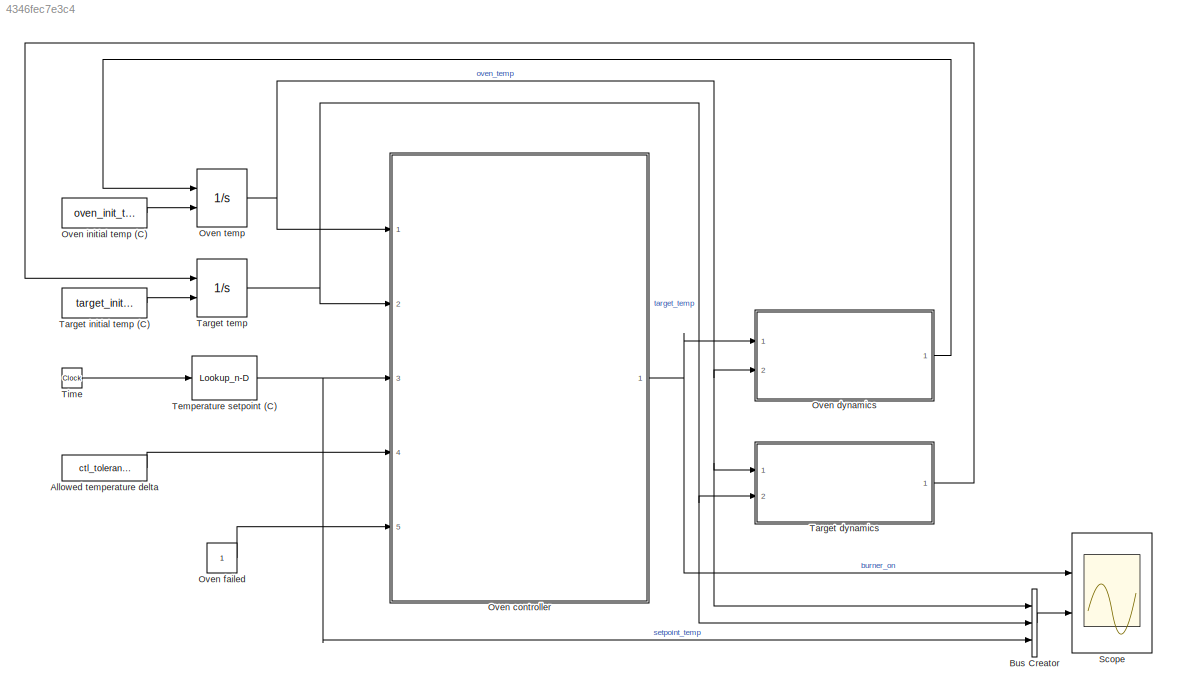
MODEL slx_4346fec7e3c4
KIND model
CONFIG InitFcn = %% useful unit conversions\nCtoK = 273.15;		% converts a temperature in celsius to kelvin\n\n%% air data from http://www.engineeringtoolbox.com/air-properties-d_156.html\nair_data = [\n-150	2.793	1.026	0.0116	3.08	8.21	0.76\n-100	1.980	1.009	0.0160	5.95	5.82	0.74\n-50	1.534	1.005	0.0204	9.55	4.51	0.725\n0	1.293	1.005	0.0243	13.30	3.67	0.715\n20	1.205	1.005	0.0257	15.11	3.43	0.713\n40	1.127	1.005	0.0271	16.9...<+1456ch>
BLOCK [Constant] Allowed temperature delta
  Value = ctl_tolerance
BLOCK [BusCreator] Bus Creator
  DisplayOption = bar
  Inputs = 3
  Ports = [3, 1]
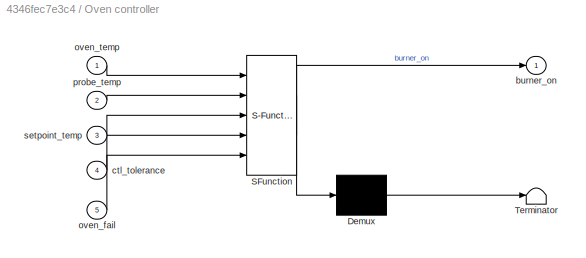
BLOCK [SubSystem] Oven controller
  ErrorFcn = Stateflow.Translate.translate
  FunctionWithSeparateData = off
  MaskHideContents = off
  MinAlgLoopOccurrences = off
  Opaque = off
  PermitHierarchicalResolution = ExplicitOnly
  Ports = [5, 1]
  PropExecContextOutsideSubsystem = off
  RTWSystemCode = Auto
  RequestExecContextInheritance = off
  SFBlockType = Chart
  TreatAsAtomicUnit = on
BLOCK [Demux] Oven controller/ Demux 
  Outputs = 1
  Ports = [1, 1]
BLOCK [S-Function] Oven controller/ SFunction 
  EnableBusSupport = on
  FunctionName = sf_sfun
  PortCounts = [5 2]
  Ports = [5, 2]
  Tag = Stateflow S-Function OvenController 1
BLOCK [Terminator] Oven controller/ Terminator 
BLOCK [Outport] Oven controller/burner_on
  IconDisplay = Port number
BLOCK [Inport] Oven controller/ctl_tolerance
  IconDisplay = Port number
  Port = 4
BLOCK [Inport] Oven controller/oven_fail
  IconDisplay = Port number
  Port = 5
BLOCK [Inport] Oven controller/oven_temp
  IconDisplay = Port number
BLOCK [Inport] Oven controller/probe_temp
  IconDisplay = Port number
  Port = 2
BLOCK [Inport] Oven controller/setpoint_temp
  IconDisplay = Port number
  Port = 3
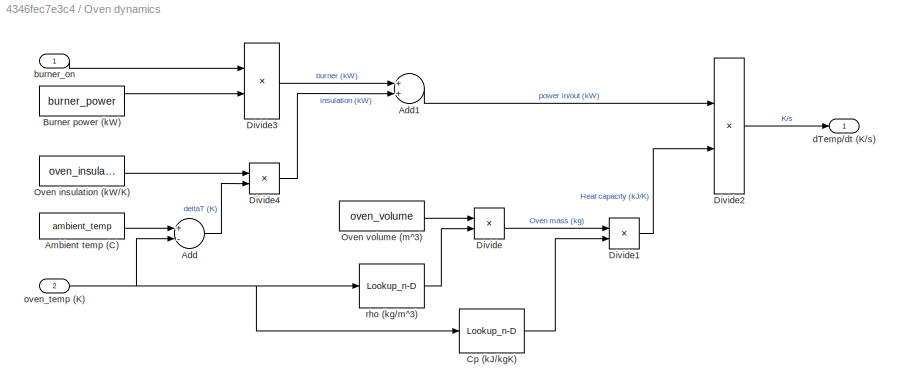
BLOCK [SubSystem] Oven dynamics
  FunctionWithSeparateData = off
  MaskHideContents = off
  MinAlgLoopOccurrences = off
  Opaque = off
  Ports = [2, 1]
  PropExecContextOutsideSubsystem = off
  RTWSystemCode = Auto
  RequestExecContextInheritance = off
BLOCK [Sum] Oven dynamics/Add
  InputSameDT = off
  Inputs = +-
  OutDataTypeStr = Inherit: Inherit via internal rule
  Ports = [2, 1]
  SaturateOnIntegerOverflow = off
BLOCK [Sum] Oven dynamics/Add1
  InputSameDT = off
  OutDataTypeStr = Inherit: Inherit via internal rule
  Ports = [2, 1]
  SaturateOnIntegerOverflow = off
BLOCK [Constant] Oven dynamics/Ambient temp (C)
  Value = ambient_temp
BLOCK [Constant] Oven dynamics/Burner power (kW)
  Value = burner_power
BLOCK [Lookup_n-D] Oven dynamics/Cp (kJ//kgK)
  BreakpointsForDimension1 = air_data(:,air_data_TEMP)
  DiagnosticForOutOfRangeInput = Warning
  NumberOfTableDimensions = 1
  Ports = [1, 1]
  RndMeth = Simplest
  Table = air_data(:,air_data_CP)
BLOCK [Product] Oven dynamics/Divide
  InputSameDT = off
  Inputs = **
  OutDataTypeStr = Inherit: Inherit via internal rule
  Ports = [2, 1]
  RndMeth = Floor
  SaturateOnIntegerOverflow = off
BLOCK [Product] Oven dynamics/Divide1
  InputSameDT = off
  Inputs = **
  OutDataTypeStr = Inherit: Inherit via internal rule
  Ports = [2, 1]
  RndMeth = Floor
  SaturateOnIntegerOverflow = off
BLOCK [Product] Oven dynamics/Divide2
  InputSameDT = off
  Inputs = */
  OutDataTypeStr = Inherit: Inherit via internal rule
  Ports = [2, 1]
  RndMeth = Floor
  SaturateOnIntegerOverflow = off
BLOCK [Product] Oven dynamics/Divide3
  InputSameDT = off
  Inputs = **
  OutDataTypeStr = Inherit: Inherit via internal rule
  Ports = [2, 1]
  RndMeth = Floor
  SaturateOnIntegerOverflow = off
BLOCK [Product] Oven dynamics/Divide4
  InputSameDT = off
  Inputs = **
  OutDataTypeStr = Inherit: Inherit via internal rule
  Ports = [2, 1]
  RndMeth = Floor
  SaturateOnIntegerOverflow = off
BLOCK [Constant] Oven dynamics/Oven insulation (kW//K)
  Value = oven_insulation
BLOCK [Constant] Oven dynamics/Oven volume (m^3)
  Value = oven_volume
BLOCK [Inport] Oven dynamics/burner_on
  IconDisplay = Port number
BLOCK [Outport] Oven dynamics/dTemp//dt (K//s)
  IconDisplay = Port number
BLOCK [Inport] Oven dynamics/oven_temp (K)
  IconDisplay = Port number
  Port = 2
BLOCK [Lookup_n-D] Oven dynamics/rho (kg//m^3)
  BreakpointsForDimension1 = air_data(:,air_data_TEMP)
  DiagnosticForOutOfRangeInput = Warning
  NumberOfTableDimensions = 1
  Ports = [1, 1]
  RndMeth = Simplest
  Table = air_data(:,air_data_RHO)
BLOCK [Constant] Oven failed
BLOCK [Constant] Oven initial temp (C)
  Value = oven_init_temp
BLOCK [Integrator] Oven temp
  InitialConditionSource = external
  Ports = [2, 1]
BLOCK [Scope] Scope
  DataFormat = StructureWithTime
  Floating = off
  NumInputPorts = 2
  Ports = [2]
  SampleTime = 0
  ShowLegends = off
  YMax = 5~5
  YMin = -5~-5
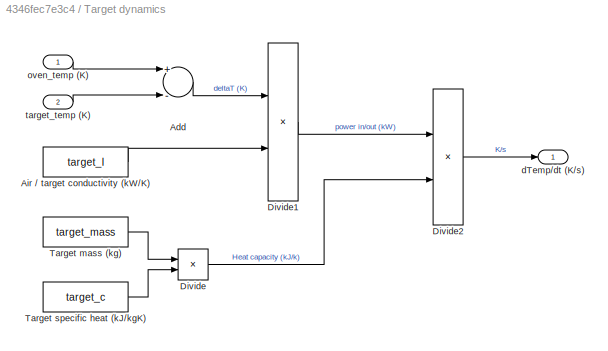
BLOCK [SubSystem] Target dynamics
  FunctionWithSeparateData = off
  MaskHideContents = off
  MinAlgLoopOccurrences = off
  Opaque = off
  Ports = [2, 1]
  PropExecContextOutsideSubsystem = off
  RTWSystemCode = Auto
  RequestExecContextInheritance = off
BLOCK [Sum] Target dynamics/Add
  InputSameDT = off
  Inputs = +-
  OutDataTypeStr = Inherit: Inherit via internal rule
  Ports = [2, 1]
  SaturateOnIntegerOverflow = off
BLOCK [Constant] Target dynamics/Air // target conductivity (kW//K)
  Value = target_I
BLOCK [Product] Target dynamics/Divide
  InputSameDT = off
  Inputs = **
  OutDataTypeStr = Inherit: Inherit via internal rule
  Ports = [2, 1]
  RndMeth = Floor
  SaturateOnIntegerOverflow = off
BLOCK [Product] Target dynamics/Divide1
  InputSameDT = off
  Inputs = **
  OutDataTypeStr = Inherit: Inherit via internal rule
  Ports = [2, 1]
  RndMeth = Floor
  SaturateOnIntegerOverflow = off
BLOCK [Product] Target dynamics/Divide2
  InputSameDT = off
  Inputs = */
  OutDataTypeStr = Inherit: Inherit via internal rule
  Ports = [2, 1]
  RndMeth = Floor
  SaturateOnIntegerOverflow = off
BLOCK [Constant] Target dynamics/Target mass (kg)
  Value = target_mass
BLOCK [Constant] Target dynamics/Target specific heat (kJ//kgK)
  Value = target_c
BLOCK [Outport] Target dynamics/dTemp//dt (K//s)
  IconDisplay = Port number
BLOCK [Inport] Target dynamics/oven_temp (K)
  IconDisplay = Port number
BLOCK [Inport] Target dynamics/target_temp (K)
  IconDisplay = Port number
  Port = 2
BLOCK [Constant] Target initial temp (C)
  Value = target_init_temp
BLOCK [Integrator] Target temp
  InitialConditionSource = external
  Ports = [2, 1]
BLOCK [Lookup_n-D] Temperature setpoint (C)
  BreakpointsForDimension1 = temp_profile(:,temp_profile_TIME)
  ExtrapMethod = Clip
  NumberOfTableDimensions = 1
  Ports = [1, 1]
  RndMeth = Simplest
  Table = temp_profile(:,temp_profile_TEMP)
  UseLastTableValue = on
BLOCK [Clock] Time
LINE Allowed temperature delta:1 -> Oven controller:4
LINE Bus Creator:1 -> Scope:2
NET Oven controller:1 -> Oven dynamics:1, Scope:1
LINE Oven dynamics/Add1:1 -> Oven dynamics/Divide2:1
LINE Oven dynamics/Add:1 -> Oven dynamics/Divide4:2
LINE Oven dynamics/Ambient temp (C):1 -> Oven dynamics/Add:1
LINE Oven dynamics/Burner power (kW):1 -> Oven dynamics/Divide3:2
LINE Oven dynamics/Cp (kJ//kgK):1 -> Oven dynamics/Divide1:2
LINE Oven dynamics/Divide1:1 -> Oven dynamics/Divide2:2
LINE Oven dynamics/Divide2:1 -> Oven dynamics/dTemp//dt (K//s):1
LINE Oven dynamics/Divide3:1 -> Oven dynamics/Add1:1
LINE Oven dynamics/Divide4:1 -> Oven dynamics/Add1:2
LINE Oven dynamics/Divide:1 -> Oven dynamics/Divide1:1
LINE Oven dynamics/Oven insulation (kW//K):1 -> Oven dynamics/Divide4:1
LINE Oven dynamics/Oven volume (m^3):1 -> Oven dynamics/Divide:1
LINE Oven dynamics/burner_on:1 -> Oven dynamics/Divide3:1
NET Oven dynamics/oven_temp (K):1 -> Oven dynamics/Add:2, Oven dynamics/Cp (kJ//kgK):1, Oven dynamics/rho (kg//m^3):1
LINE Oven dynamics/rho (kg//m^3):1 -> Oven dynamics/Divide:2
LINE Oven dynamics:1 -> Oven temp:1
LINE Oven failed:1 -> Oven controller:5
LINE Oven initial temp (C):1 -> Oven temp:2
NET Oven temp:1 -> Bus Creator:1, Oven controller:1, Oven dynamics:2, Target dynamics:1
LINE Target dynamics/Add:1 -> Target dynamics/Divide1:1
LINE Target dynamics/Air // target conductivity (kW//K):1 -> Target dynamics/Divide1:2
LINE Target dynamics/Divide1:1 -> Target dynamics/Divide2:1
LINE Target dynamics/Divide2:1 -> Target dynamics/dTemp//dt (K//s):1
LINE Target dynamics/Divide:1 -> Target dynamics/Divide2:2
LINE Target dynamics/Target mass (kg):1 -> Target dynamics/Divide:1
LINE Target dynamics/Target specific heat (kJ//kgK):1 -> Target dynamics/Divide:2
LINE Target dynamics/oven_temp (K):1 -> Target dynamics/Add:1
LINE Target dynamics/target_temp (K):1 -> Target dynamics/Add:2
LINE Target dynamics:1 -> Target temp:1
LINE Target initial temp (C):1 -> Target temp:2
NET Target temp:1 -> Bus Creator:2, Oven controller:2, Target dynamics:2
NET Temperature setpoint (C):1 -> Bus Creator:3, Oven controller:3
LINE Time:1 -> Temperature setpoint (C):1
note: NET lines group one-source signal fan-out (src -> all destinations, sorted); 1:1 wires keep LINE
